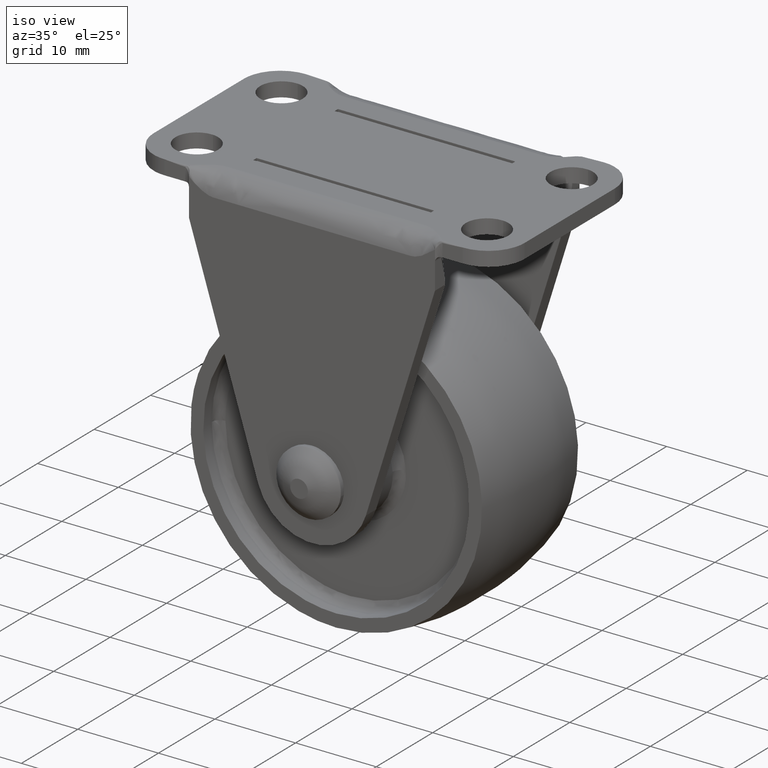
[diagram: clean part render]
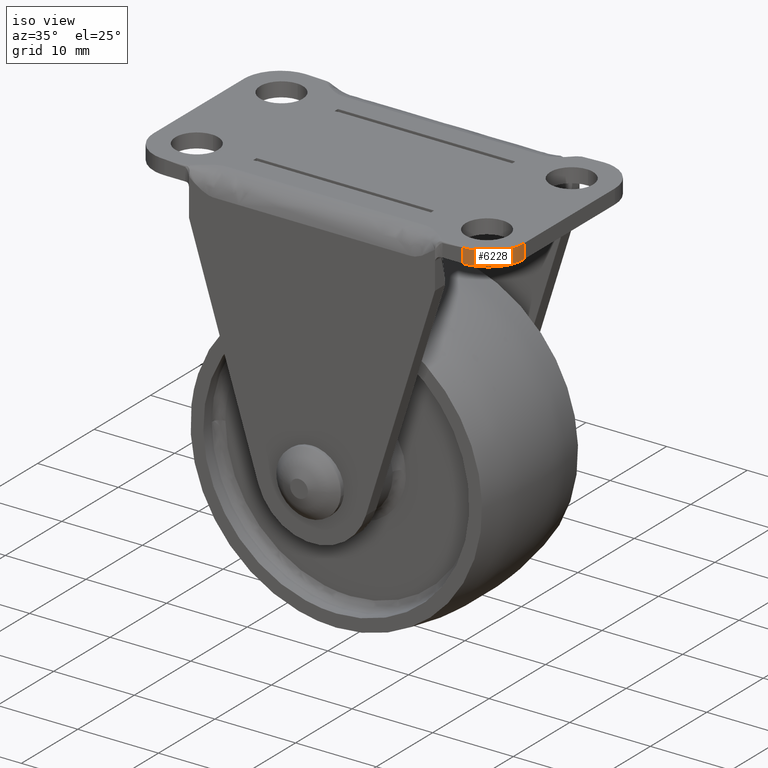
[diagram: same view with one face highlighted and labeled with its STEP entity id]
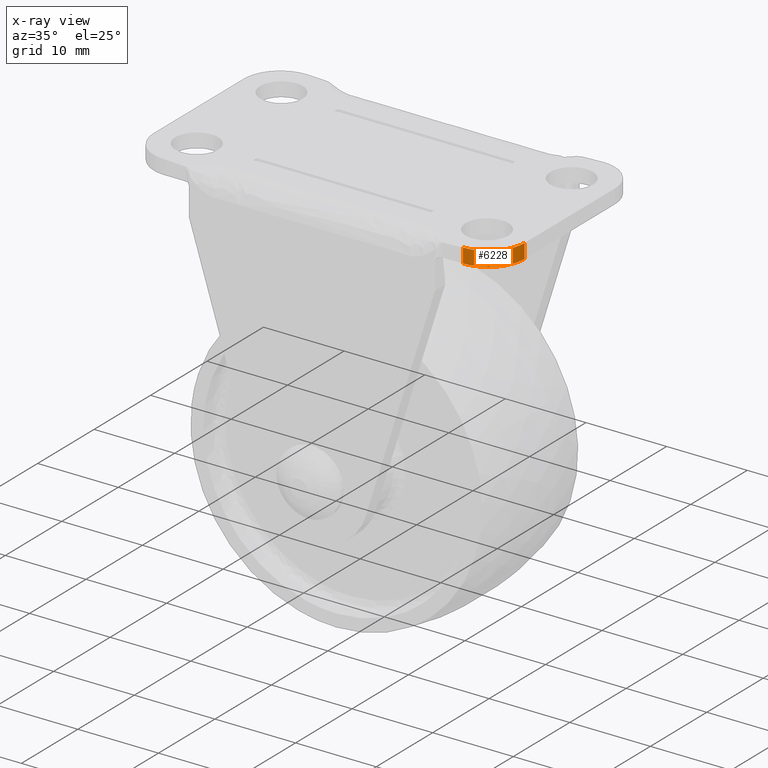
[diagram: x-ray of the same camera — body ghosted, the highlighted face saturated]
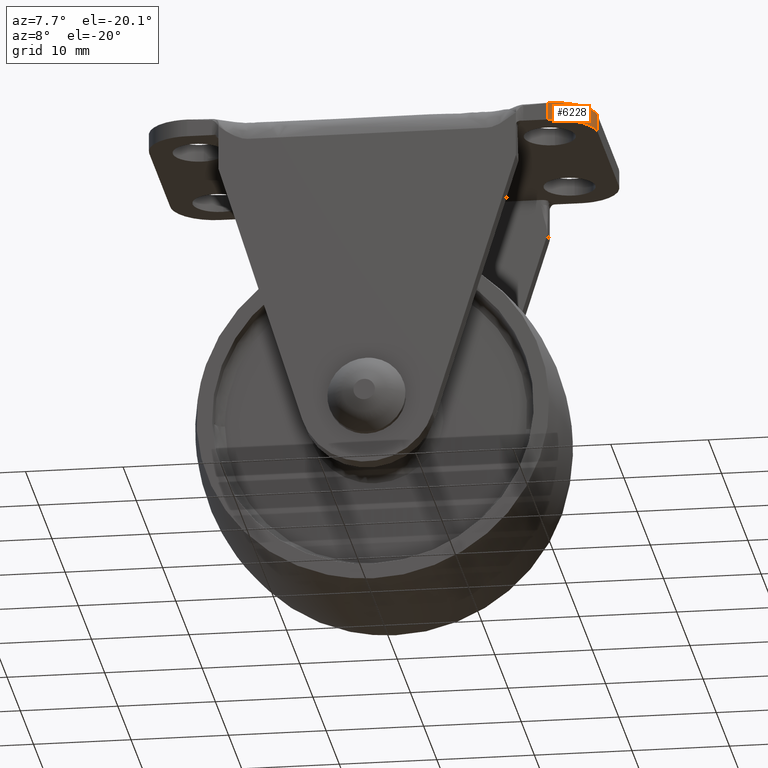
[diagram: same view with one face highlighted and labeled with its STEP entity id]
A machine part, iso view. The second image highlights one B-rep face of the part: STEP entity #6228.
The next image is the same camera in x-ray: the body ghosted, the highlighted face saturated — about 0% of this face is hidden behind the body in this view.
A second angle (auxiliary view) of the same face is appended — the face is thin or edge-on in the first view.
In plain terms, the highlighted face is a freeform B-spline surface patch.
Its self-contained STEP definition (entity closure, byte-faithful):
#4735=CARTESIAN_POINT('',(18.500000000000000,-12.500000000000000,31.0));
#4736=VERTEX_POINT('',#4735);
#6010=CARTESIAN_POINT('',(23.0,-8.0,31.0));
#6011=VERTEX_POINT('',#6010);
#6012=CARTESIAN_POINT('',(18.500000000000000,-12.500000000000000,31.0));
#6013=CARTESIAN_POINT('',(22.999999999999996,-12.499999999999998,30.999999999999996));
#6014=CARTESIAN_POINT('',(23.0,-8.0,31.0));
#6022=(BOUNDED_CURVE()B_SPLINE_CURVE(2,(#6012,#6013,#6014),.UNSPECIFIED.,.F.,.U.)CURVE()GEOMETRIC_REPRESENTATION_ITEM()QUASI_UNIFORM_CURVE()RATIONAL_B_SPLINE_CURVE((1.0,0.707106781186547,1.0))REPRESENTATION_ITEM(''));
#6023=EDGE_CURVE('',#4736,#6011,#6022,.T.);
#6174=CARTESIAN_POINT('',(23.0,-8.0,29.199999999999999));
#6175=VERTEX_POINT('',#6174);
#6176=CARTESIAN_POINT('',(23.0,-8.0,29.199999999999999));
#6177=CARTESIAN_POINT('',(23.0,-8.0,31.0));
#6178=QUASI_UNIFORM_CURVE('',1,(#6176,#6177),.UNSPECIFIED.,.F.,.U.);
#6179=EDGE_CURVE('',#6175,#6011,#6178,.T.);
#6190=CARTESIAN_POINT('',(22.998457962390010,-7.882203732614570,29.154999999999990));
#6191=CARTESIAN_POINT('',(22.998457962390010,-7.882203732614570,31.046125000000000));
#6192=CARTESIAN_POINT('',(23.128215170748174,-12.837431602496236,29.155000000000001));
#6193=CARTESIAN_POINT('',(23.128215170748174,-12.837431602496236,31.046125000000000));
#6194=CARTESIAN_POINT('',(18.183559659683073,-12.488860157213647,29.154999999999994));
#6195=CARTESIAN_POINT('',(18.183559659683073,-12.488860157213647,31.046125000000004));
#6203=(BOUNDED_SURFACE()B_SPLINE_SURFACE(1,2,((#6190,#6192,#6194),(#6191,#6193,#6195)),.UNSPECIFIED.,.F.,.F.,.U.)B_SPLINE_SURFACE_WITH_KNOTS((2,2),(3,3),(0.0,1.0),(0.0,7.970140548397636),.UNSPECIFIED.)GEOMETRIC_REPRESENTATION_ITEM()RATIONAL_B_SPLINE_SURFACE(((1.0,0.670944223154768,0.996392648609106),(1.0,0.670944223154768,0.996392648609106)))REPRESENTATION_ITEM('')SURFACE());
#6204=ORIENTED_EDGE('',*,*,#6023,.F.);
#6205=CARTESIAN_POINT('',(18.500000000000000,-12.500000000000000,29.199999999999999));
#6206=VERTEX_POINT('',#6205);
#6207=CARTESIAN_POINT('',(18.500000000000000,-12.500000000000000,29.199999999999999));
#6208=CARTESIAN_POINT('',(18.500000000000000,-12.500000000000000,31.0));
#6209=QUASI_UNIFORM_CURVE('',1,(#6207,#6208),.UNSPECIFIED.,.F.,.U.);
#6210=EDGE_CURVE('',#6206,#4736,#6209,.T.);
#6211=ORIENTED_EDGE('',*,*,#6210,.F.);
#6212=CARTESIAN_POINT('',(18.500000000000000,-12.500000000000000,29.199999999999999));
#6213=CARTESIAN_POINT('',(22.999999999999996,-12.499999999999998,29.199999999999989));
#6214=CARTESIAN_POINT('',(23.0,-8.0,29.199999999999999));
#6222=(BOUNDED_CURVE()B_SPLINE_CURVE(2,(#6212,#6213,#6214),.UNSPECIFIED.,.F.,.U.)CURVE()GEOMETRIC_REPRESENTATION_ITEM()QUASI_UNIFORM_CURVE()RATIONAL_B_SPLINE_CURVE((1.0,0.707106781186547,1.0))REPRESENTATION_ITEM(''));
#6223=EDGE_CURVE('',#6206,#6175,#6222,.T.);
#6224=ORIENTED_EDGE('',*,*,#6223,.T.);
#6225=ORIENTED_EDGE('',*,*,#6179,.T.);
#6226=EDGE_LOOP('',(#6204,#6211,#6224,#6225));
#6227=FACE_OUTER_BOUND('',#6226,.T.);
#6228=ADVANCED_FACE('',(#6227),#6203,.T.);